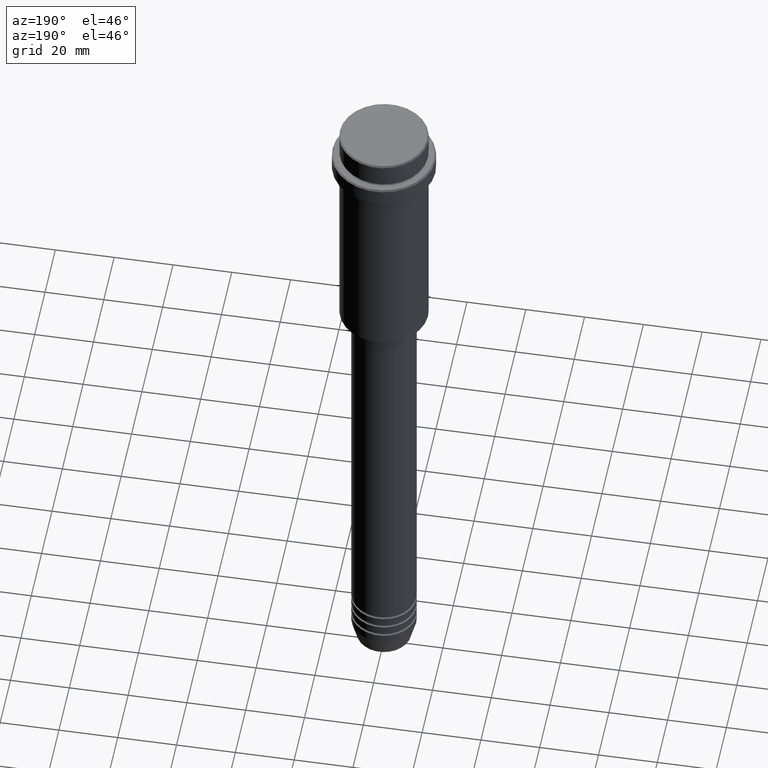
[diagram: clean part render]
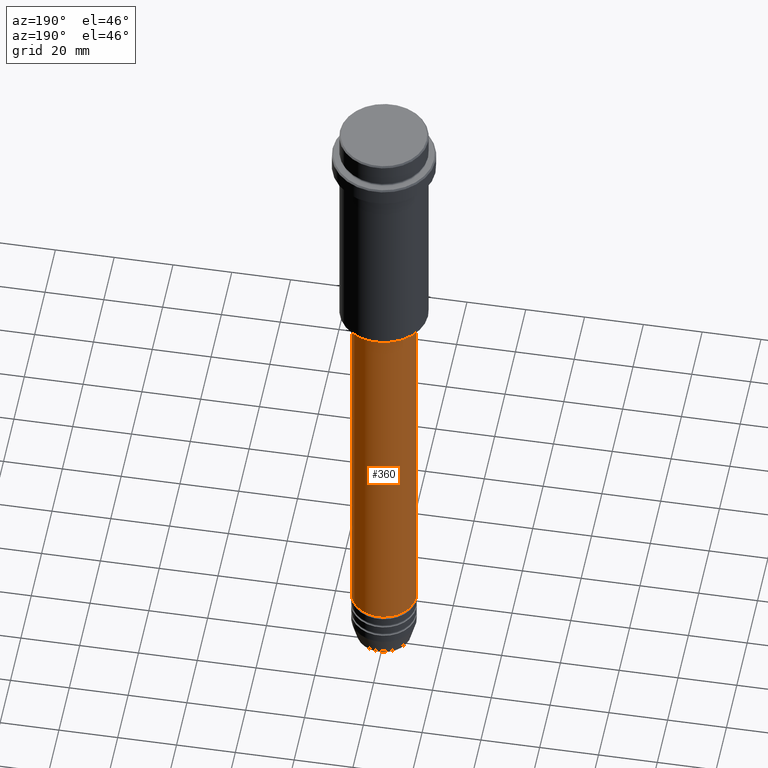
[diagram: same view with one face highlighted and labeled with its STEP entity id]
A machine part, auxiliary view. The second image highlights one B-rep face of the part: STEP entity #360.
In plain terms, the highlighted cylindrical surface (edge-blend (fillet) strip) has radius 11 mm, axis along (-0, -0, 1).
Its self-contained STEP definition (entity closure, byte-faithful):
#55 = DIRECTION ( 'NONE',  ( 1.000000000000000000, 0.000000000000000000, 0.000000000000000000 ) ) ;
#67 = VERTEX_POINT ( 'NONE', #1196 ) ;
#72 = EDGE_CURVE ( 'NONE', #502, #1309, #850, .T. ) ;
#89 = AXIS2_PLACEMENT_3D ( 'NONE', #303, #540, #947 ) ;
#142 = VECTOR ( 'NONE', #858, 1000.000000000000000 ) ;
#218 = DIRECTION ( 'NONE',  ( -0.000000000000000000, -0.000000000000000000, 1.000000000000000000 ) ) ;
#256 = AXIS2_PLACEMENT_3D ( 'NONE', #632, #525, #55 ) ;
#300 = ORIENTED_EDGE ( 'NONE', *, *, #72, .F. ) ;
#303 = CARTESIAN_POINT ( 'NONE',  ( 0.000000000000000000, 0.000000000000000000, 0.000000000000000000 ) ) ;
#317 = CARTESIAN_POINT ( 'NONE',  ( -10.99999999999999822, 1.347111479062088207E-15, -86.00000000000000000 ) ) ;
#321 = DIRECTION ( 'NONE',  ( -0.000000000000000000, -0.000000000000000000, 1.000000000000000000 ) ) ;
#360 = ADVANCED_FACE ( 'NONE', ( #1360 ), #769, .T. ) ;
#425 = DIRECTION ( 'NONE',  ( 1.000000000000000000, 0.000000000000000000, 0.000000000000000000 ) ) ;
#432 = CARTESIAN_POINT ( 'NONE',  ( 11.00000000000000000, 0.000000000000000000, 0.000000000000000000 ) ) ;
#502 = VERTEX_POINT ( 'NONE', #1342 ) ;
#525 = DIRECTION ( 'NONE',  ( -0.000000000000000000, -0.000000000000000000, 1.000000000000000000 ) ) ;
#540 = DIRECTION ( 'NONE',  ( -0.000000000000000000, -0.000000000000000000, 1.000000000000000000 ) ) ;
#578 = VECTOR ( 'NONE', #321, 1000.000000000000000 ) ;
#601 = AXIS2_PLACEMENT_3D ( 'NONE', #865, #218, #425 ) ;
#632 = CARTESIAN_POINT ( 'NONE',  ( 0.000000000000000000, 0.000000000000000000, -220.9999999999998863 ) ) ;
#637 = ORIENTED_EDGE ( 'NONE', *, *, #932, .T. ) ;
#759 = LINE ( 'NONE', #432, #142 ) ;
#769 = CYLINDRICAL_SURFACE ( 'NONE', #89, 11.00000000000000000 ) ;
#788 = EDGE_CURVE ( 'NONE', #979, #67, #1322, .T. ) ;
#850 = CIRCLE ( 'NONE', #601, 10.99999999999999822 ) ;
#858 = DIRECTION ( 'NONE',  ( -0.000000000000000000, -0.000000000000000000, 1.000000000000000000 ) ) ;
#865 = CARTESIAN_POINT ( 'NONE',  ( 0.000000000000000000, 0.000000000000000000, -86.00000000000000000 ) ) ;
#932 = EDGE_CURVE ( 'NONE', #67, #1309, #995, .T. ) ;
#947 = DIRECTION ( 'NONE',  ( 1.000000000000000000, 0.000000000000000000, 0.000000000000000000 ) ) ;
#979 = VERTEX_POINT ( 'NONE', #990 ) ;
#990 = CARTESIAN_POINT ( 'NONE',  ( 11.00000000000000000, 0.000000000000000000, -220.9999999999998863 ) ) ;
#995 = LINE ( 'NONE', #1316, #578 ) ;
#1196 = CARTESIAN_POINT ( 'NONE',  ( -11.00000000000000000, 1.347111479062088405E-15, -220.9999999999998863 ) ) ;
#1217 = ORIENTED_EDGE ( 'NONE', *, *, #1416, .F. ) ;
#1273 = ORIENTED_EDGE ( 'NONE', *, *, #788, .T. ) ;
#1309 = VERTEX_POINT ( 'NONE', #317 ) ;
#1316 = CARTESIAN_POINT ( 'NONE',  ( -11.00000000000000000, 1.347111479062088405E-15, 0.000000000000000000 ) ) ;
#1322 = CIRCLE ( 'NONE', #256, 11.00000000000000000 ) ;
#1342 = CARTESIAN_POINT ( 'NONE',  ( 10.99999999999999822, 0.000000000000000000, -86.00000000000000000 ) ) ;
#1360 = FACE_OUTER_BOUND ( 'NONE', #1361, .T. ) ;
#1361 = EDGE_LOOP ( 'NONE', ( #1273, #637, #300, #1217 ) ) ;
#1416 = EDGE_CURVE ( 'NONE', #979, #502, #759, .T. ) ;